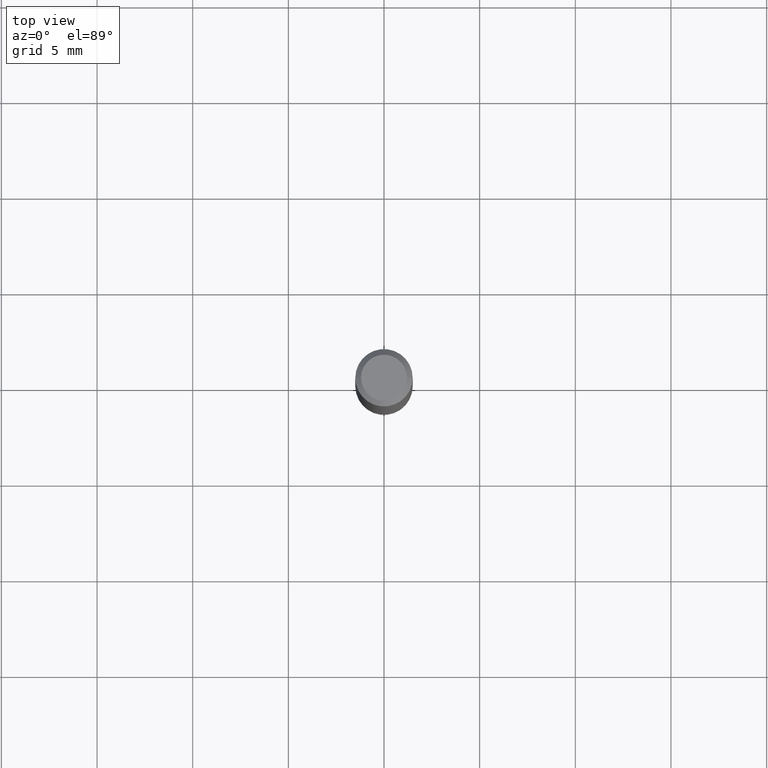
[diagram: clean part render]
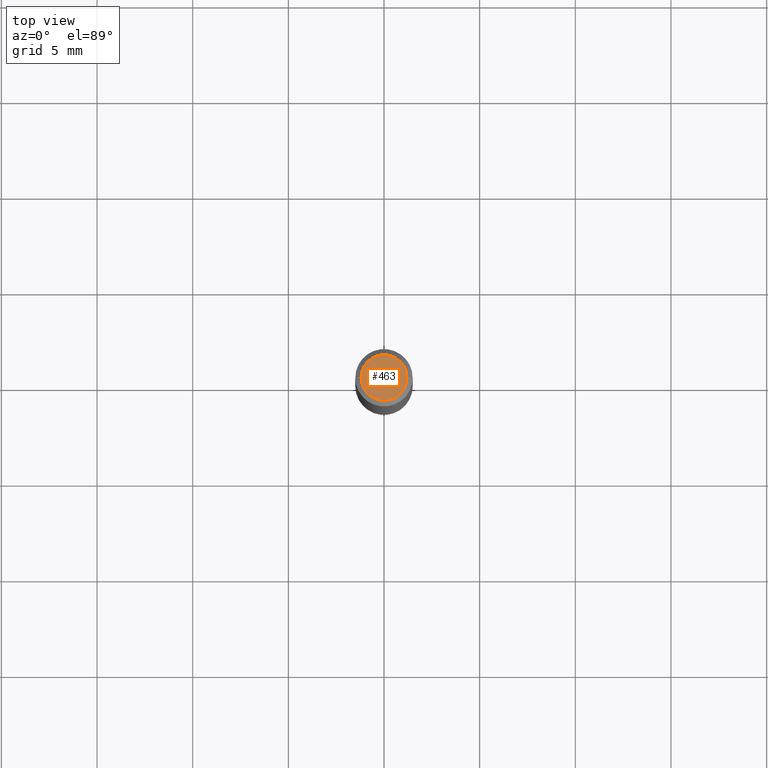
[diagram: same view with one face highlighted and labeled with its STEP entity id]
A machine part, top view. The second image highlights one B-rep face of the part: STEP entity #463.
In plain terms, the highlighted planar face has unit normal (0, -0, -1).
Its self-contained STEP definition (entity closure, byte-faithful):
#15 = DIRECTION ( 'NONE',  ( -2.445468806185136597E-29, 3.491481338843145583E-15, 1.000000000000000000 ) ) ;
#41 = CARTESIAN_POINT ( 'NONE',  ( -0.04724000000000000421, 3.504923541997677355E-16, -3.380025165670481712E-19 ) ) ;
#67 = VERTEX_POINT ( 'NONE', #41 ) ;
#78 = DIRECTION ( 'NONE',  ( -1.000000000000000000, 6.982962677686265922E-15, -4.876176775795935793E-29 ) ) ;
#118 = ORIENTED_EDGE ( 'NONE', *, *, #294, .T. ) ;
#127 = CARTESIAN_POINT ( 'NONE',  ( 8.265746106709734507E-48, -1.180129479067563789E-33, -3.380025165646692144E-19 ) ) ;
#140 = CIRCLE ( 'NONE', #220, 0.04724000000000000421 ) ;
#183 = DIRECTION ( 'NONE',  ( -2.445468806185136597E-29, 3.491481338843145583E-15, 1.000000000000000000 ) ) ;
#210 = CIRCLE ( 'NONE', #347, 0.04724000000000000421 ) ;
#220 = AXIS2_PLACEMENT_3D ( 'NONE', #127, #15, #482 ) ;
#230 = AXIS2_PLACEMENT_3D ( 'NONE', #421, #393, #78 ) ;
#263 = CARTESIAN_POINT ( 'NONE',  ( 8.265746106709734507E-48, -1.180129479067563789E-33, -3.380025165646692144E-19 ) ) ;
#267 = PLANE ( 'NONE',  #230 ) ;
#294 = EDGE_CURVE ( 'NONE', #404, #67, #140, .T. ) ;
#307 = ORIENTED_EDGE ( 'NONE', *, *, #434, .T. ) ;
#321 = EDGE_LOOP ( 'NONE', ( #307, #118 ) ) ;
#347 = AXIS2_PLACEMENT_3D ( 'NONE', #263, #183, #377 ) ;
#377 = DIRECTION ( 'NONE',  ( 1.000000000000000000, -6.982962677686266711E-15, 4.876185090822587894E-29 ) ) ;
#393 = DIRECTION ( 'NONE',  ( 2.438088387897960049E-29, -3.491481338843145188E-15, -1.000000000000000000 ) ) ;
#404 = VERTEX_POINT ( 'NONE', #411 ) ;
#411 = CARTESIAN_POINT ( 'NONE',  ( 0.04724000000000000421, -3.852183633974369838E-16, -3.380025165621689721E-19 ) ) ;
#421 = CARTESIAN_POINT ( 'NONE',  ( 4.132873053354867254E-48, -5.900647395337818946E-34, -1.690012582823346072E-19 ) ) ;
#434 = EDGE_CURVE ( 'NONE', #67, #404, #210, .T. ) ;
#458 = FACE_OUTER_BOUND ( 'NONE', #321, .T. ) ;
#463 = ADVANCED_FACE ( 'NONE', ( #458 ), #267, .F. ) ;
#482 = DIRECTION ( 'NONE',  ( 1.000000000000000000, -6.982962677686266711E-15, 4.876185090822587894E-29 ) ) ;